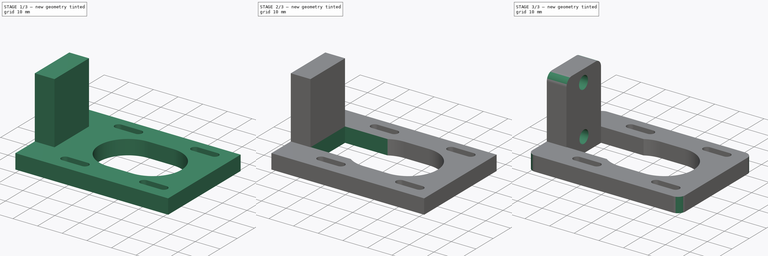
[diagram: build sequence overview — one tinted view per stage of 3, left to right]
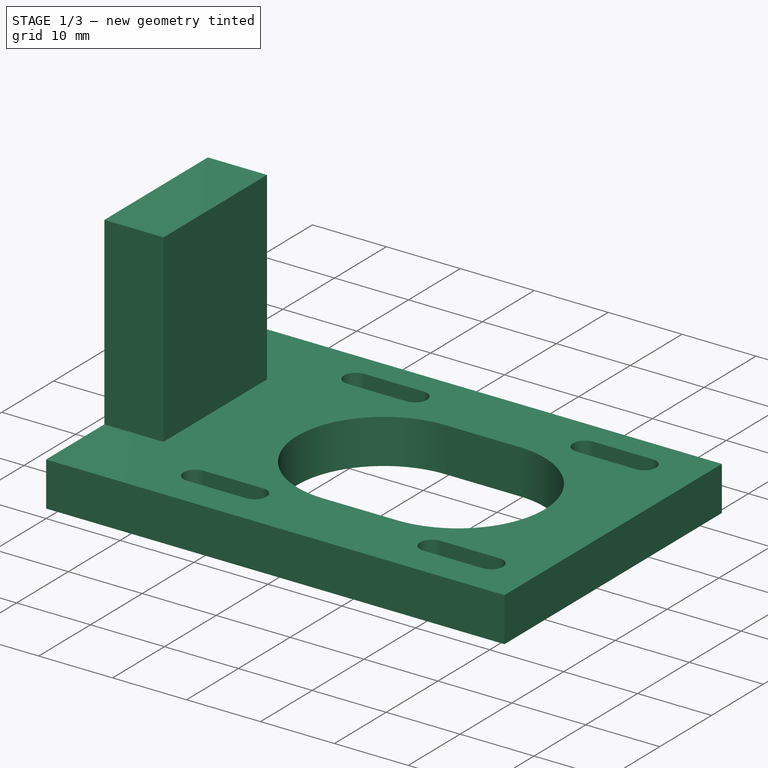
[diagram: stage 1 of 3 — iso view after this stage's code; geometry added in this stage tinted green]
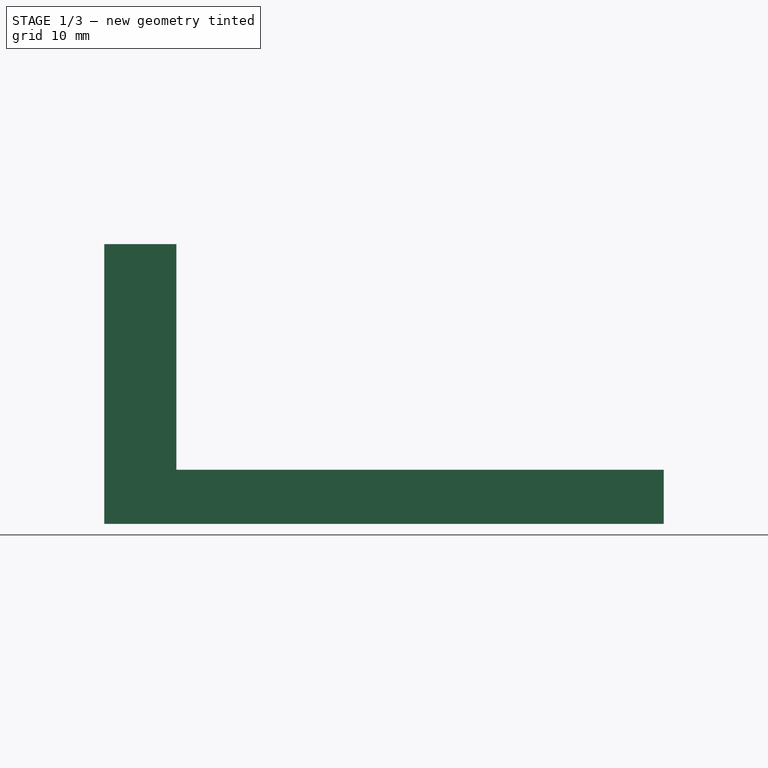
[diagram: stage 1 of 3 — front view after this stage's code; geometry added in this stage tinted green]
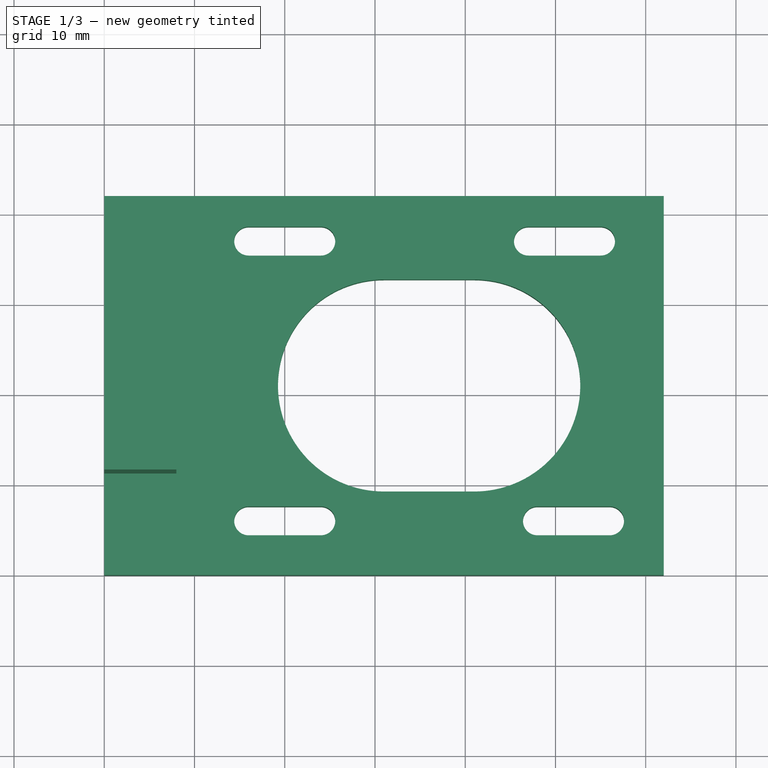
[diagram: stage 1 of 3 — top view after this stage's code; geometry added in this stage tinted green]
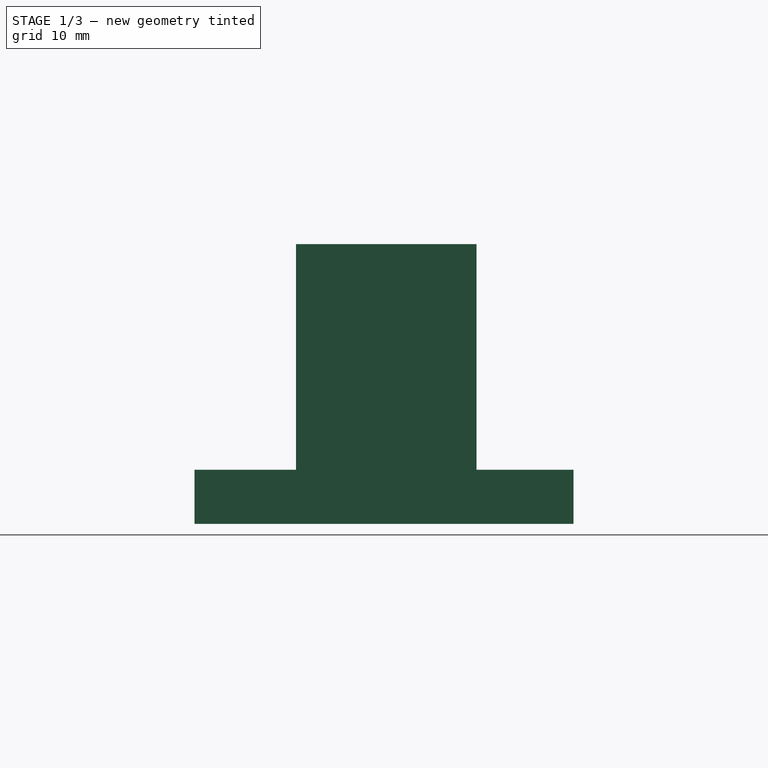
[diagram: stage 1 of 3 — right view after this stage's code; geometry added in this stage tinted green]
FCSTD DOCUMENT  (FreeCAD 1.0R38806 (Git))
Label: nema_mount_2
License: All rights reserved
LicenseURL: http://en.wikipedia.org/wiki/All_rights_reserved
objects: Sketcher::SketchObject×4, PartDesign::Pad×2, PartDesign::Pocket×2, PartDesign::Fillet×1, PartDesign::Body×1
note: 24 computed .brp shape members not serialized (recipe doc carries the construction recipe); baked Part::Feature solids carry a one-line shape summary decoded from their .brp

FEATURE [Sketcher::SketchObject] Sketch
  ArcFitTolerance = 0
  AttachmentSupport = -> [XY_Plane]
  FullyConstrained = true
  MakeInternals = false
  MapMode = 5
  sketch-geometry (25):
    g0: LineSegment StartX=62 StartY=42 StartZ=0 EndX=62 EndY=0 EndZ=0
    g1: LineSegment StartX=62 StartY=0 StartZ=0 EndX=10 EndY=0 EndZ=0
    g2: ArcOfCircle CenterX=16 CenterY=37 CenterZ=0 NormalX=0 NormalY=0 NormalZ=1 AngleXU=0 Radius=1.6 StartAngle=1.5708 EndAngle=4.71239
    g3: ArcOfCircle CenterX=24 CenterY=37 CenterZ=0 NormalX=0 NormalY=0 NormalZ=1 AngleXU=0 Radius=1.6 StartAngle=4.71239 EndAngle=7.85398
    g4: LineSegment StartX=16 StartY=38.6 StartZ=0 EndX=24 EndY=38.6 EndZ=0
    g5: LineSegment StartX=16 StartY=35.4 StartZ=0 EndX=24 EndY=35.4 EndZ=0
    g6: LineSegment StartX=47 StartY=38.6 StartZ=0 EndX=55 EndY=38.6 EndZ=0
    g7: ArcOfCircle CenterX=47 CenterY=37 CenterZ=0 NormalX=0 NormalY=0 NormalZ=1 AngleXU=0 Radius=1.6 StartAngle=1.5708 EndAngle=4.71239
    g8: ArcOfCircle CenterX=55 CenterY=37 CenterZ=0 NormalX=0 NormalY=0 NormalZ=1 AngleXU=0 Radius=1.6 StartAngle=4.71239 EndAngle=7.85398
    g9: LineSegment StartX=47 StartY=35.4 StartZ=0 EndX=55 EndY=35.4 EndZ=0
    g10: ArcOfCircle CenterX=16 CenterY=6 CenterZ=0 NormalX=0 NormalY=0 NormalZ=1 AngleXU=0 Radius=1.6 StartAngle=1.5708 EndAngle=4.71239
    g11: ArcOfCircle CenterX=24 CenterY=6 CenterZ=0 NormalX=0 NormalY=0 NormalZ=1 AngleXU=0 Radius=1.6 StartAngle=4.71239 EndAngle=7.85398
    g12: LineSegment StartX=16 StartY=7.6 StartZ=0 EndX=24 EndY=7.6 EndZ=0
    g13: LineSegment StartX=16 StartY=4.4 StartZ=0 EndX=24 EndY=4.4 EndZ=0
    g14: ArcOfCircle CenterX=48 CenterY=6 CenterZ=0 NormalX=0 NormalY=0 NormalZ=1 AngleXU=0 Radius=1.6 StartAngle=1.5708 EndAngle=4.71239
    g15: ArcOfCircle CenterX=56 CenterY=6 CenterZ=0 NormalX=0 NormalY=0 NormalZ=1 AngleXU=0 Radius=1.6 StartAngle=4.71239 EndAngle=7.85398
    g16: LineSegment StartX=48 StartY=7.6 StartZ=0 EndX=56 EndY=7.6 EndZ=0
    g17: LineSegment StartX=48 StartY=4.4 StartZ=0 EndX=56 EndY=4.4 EndZ=0
    g18: ArcOfCircle CenterX=31 CenterY=21 CenterZ=0 NormalX=0 NormalY=0 NormalZ=1 AngleXU=0 Radius=11.75 StartAngle=1.5708 EndAngle=4.71239
    g19: ArcOfCircle CenterX=41 CenterY=21 CenterZ=0 NormalX=0 NormalY=0 NormalZ=1 AngleXU=0 Radius=11.75 StartAngle=4.71239 EndAngle=7.85398
    g20: LineSegment StartX=31 StartY=32.75 StartZ=0 EndX=41 EndY=32.75 EndZ=0
    g21: LineSegment StartX=31 StartY=9.25 StartZ=0 EndX=41 EndY=9.25 EndZ=0
    g22: LineSegment StartX=62 StartY=42 StartZ=0 EndX=0 EndY=42 EndZ=0
    g23: LineSegment StartX=10 StartY=0 StartZ=0 EndX=0 EndY=0 EndZ=0
    g24: LineSegment StartX=0 StartY=42 StartZ=0 EndX=0 EndY=0 EndZ=0
  constraints (64):
    c: Vertical(g0)
    c: Coincident(g0,g1)
    c: Horizontal(g1)
    c: DistanceX(g1,g1) = 52
    c: DistanceY(g0,g0) = 42
    c: Tangent(g2,g4) = 1.5708
    c: Tangent(g2,g5) = -1.5708
    c: Tangent(g3,g4) = 1.5708
    c: Tangent(g3,g5) = -1.5708
    c: Equal(g2,g3)
    c: Horizontal(g5)
    c: DistanceY(g3,g3) = 3.2
    c: DistanceX(g2,g3) = 8
    c: Tangent(g7,g6) = 1.5708
    c: Tangent(g7,g9) = -1.5708
    c: Tangent(g8,g6) = 1.5708
    c: Tangent(g8,g9) = -1.5708
    c: Equal(g7,g8)
    c: Horizontal(g9)
    c: DistanceY(g8,g8) = 3.2
    c: DistanceX(g7,g8) = 8
    c: Tangent(g10,g12) = 1.5708
    c: Tangent(g10,g13) = -1.5708
    c: Tangent(g11,g12) = 1.5708
    c: Tangent(g11,g13) = -1.5708
    c: Equal(g10,g11)
    c: Horizontal(g13)
    c: DistanceY(g11,g11) = 3.2
    c: DistanceX(g10,g11) = 8
    c: Tangent(g14,g16) = 1.5708
    c: Tangent(g14,g17) = -1.5708
    c: Tangent(g15,g16) = 1.5708
    c: Tangent(g15,g17) = -1.5708
    c: Equal(g14,g15)
    c: Horizontal(g17)
    c: DistanceY(g15,g15) = 3.2
    c: DistanceX(g14,g15) = 8
    c: DistanceX(g2,g7) = 31
    c: Horizontal(g7,g3)
    c: Horizontal(g10,g14)
    c: DistanceX(g10,g14) = 32
    c: Vertical(g2,g10)
    c: DistanceY(g10,g2) = 31
    c: DistanceX(g1,g10) = 6
    c: DistanceY(g1,g10) = 6
    c: Tangent(g18,g20) = 1.5708
    c: Tangent(g18,g21) = -1.5708
    c: Tangent(g19,g20) = 1.5708
    c: Tangent(g19,g21) = -1.5708
    c: Equal(g18,g19)
    c: Horizontal(g21)
    c: DistanceY(g19,g19) = 23.5
    c: DistanceX(g18,g19) = 10
    c: DistanceX(g1,g18) = 21
    c: DistanceY(g1,g18) = 21
    c: Coincident(g22,g0)
    c: Horizontal(g22)
    c: Coincident(g23,g1)
    c: Horizontal(g23)
    c: Coincident(g24,g22)
    c: Coincident(g24,g23)
    c: DistanceX(g23,g23) = 10
    c: Vertical(g24)
    c: Coincident(g23,g-1)
FEATURE [PartDesign::Pad] Pad
  Direction = (0,0,1)
  Length = 6
  Length2 = 10
  Profile = -> Sketch
  ReferenceAxis = -> Sketch [N_Axis]
  Suppressed = false
  Type = 0
FEATURE [Sketcher::SketchObject] Sketch001
  ArcFitTolerance = 1e-06
  AttachmentSupport = -> [Pad]
  FullyConstrained = true
  MakeInternals = false
  MapMode = 5
  Placement = pos=(0,0,6) rot=(0,0,1;0rad)
  sketch-geometry (4):
    g0: LineSegment StartX=0 StartY=31.25 StartZ=0 EndX=0 EndY=11.25 EndZ=0
    g1: LineSegment StartX=0 StartY=11.25 StartZ=0 EndX=8 EndY=11.25 EndZ=0
    g2: LineSegment StartX=8 StartY=11.25 StartZ=0 EndX=8 EndY=31.25 EndZ=0
    g3: LineSegment StartX=8 StartY=31.25 StartZ=0 EndX=0 EndY=31.25 EndZ=0
  constraints (12):
    c: Coincident(g0,g1)
    c: Coincident(g1,g2)
    c: Coincident(g2,g3)
    c: Coincident(g3,g0)
    c: Vertical(g0)
    c: Vertical(g2)
    c: Horizontal(g1)
    c: Horizontal(g3)
    c: PointOnObject(g0,g-2)
    c: DistanceX(g3,g3) = 8
    c: DistanceY(g2,g2) = 20
    c: DistanceY(g-1,g0) = 11.25
FEATURE [PartDesign::Pad] Pad001
  BaseFeature = -> Pad
  Direction = (0,0,1)
  Length = 25
  Length2 = 4
  Profile = -> Sketch001
  ReferenceAxis = -> Sketch001 [N_Axis]
  Suppressed = false
  Type = 4
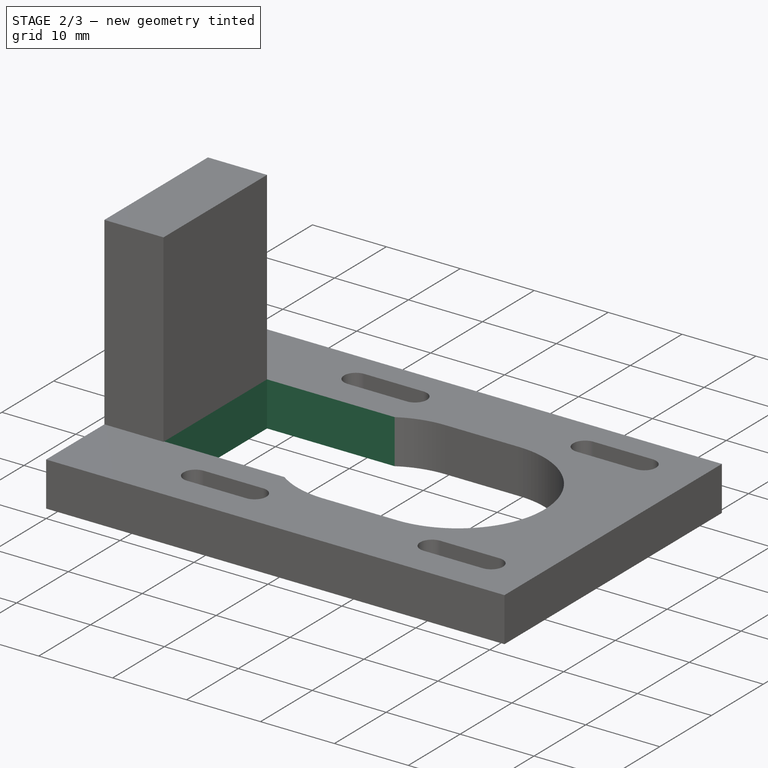
[diagram: stage 2 of 3 — iso view after this stage's code; geometry added in this stage tinted green]
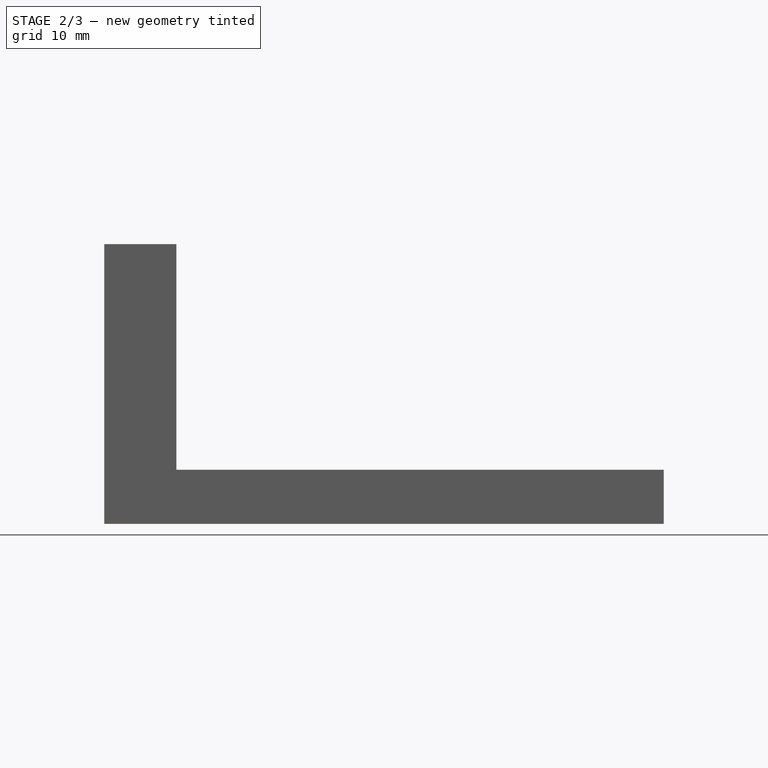
[diagram: stage 2 of 3 — front view after this stage's code; geometry added in this stage tinted green]
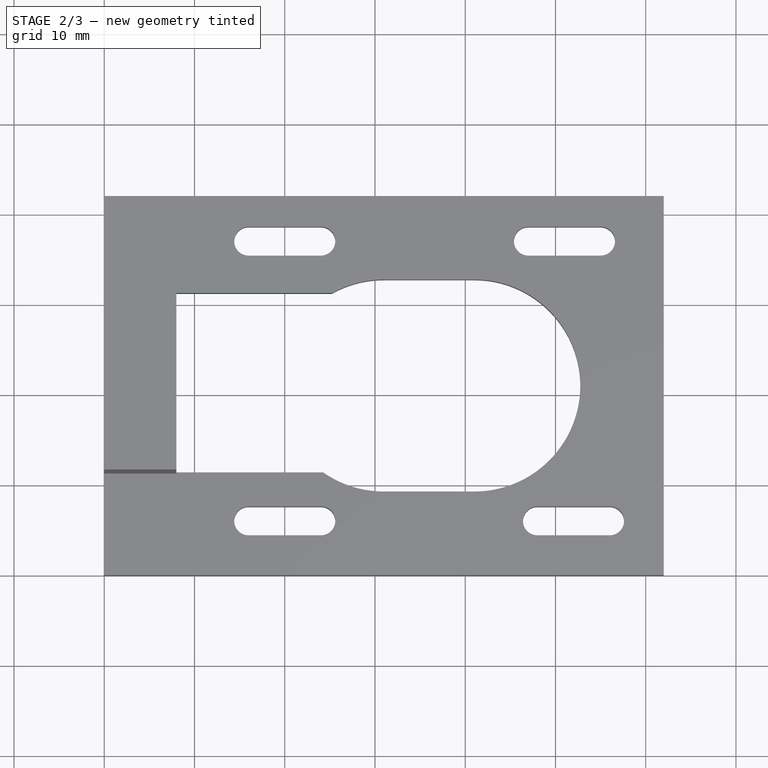
[diagram: stage 2 of 3 — top view after this stage's code; geometry added in this stage tinted green]
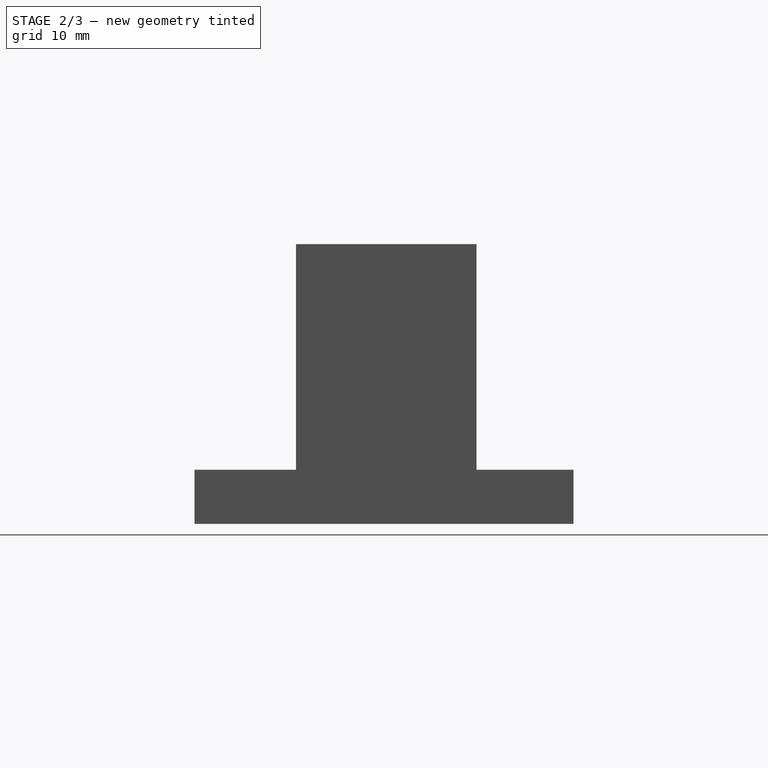
[diagram: stage 2 of 3 — right view after this stage's code; geometry added in this stage tinted green]
FEATURE [Sketcher::SketchObject] Sketch002
  ArcFitTolerance = 1e-06
  AttachmentSupport = -> [Pad001]
  ExternalGeometry = -> [Pad001]
  FullyConstrained = false
  MakeInternals = false
  MapMode = 5
  Placement = pos=(0,0,6) rot=(0,0,1;0rad)
  sketch-geometry (4):
    g0: LineSegment StartX=8 StartY=31.25 StartZ=0 EndX=8 EndY=11.3717 EndZ=0
    g1: LineSegment StartX=8 StartY=11.3717 StartZ=0 EndX=25.9815 EndY=11.3717 EndZ=0
    g2: LineSegment StartX=25.9815 StartY=11.3717 StartZ=0 EndX=25.9815 EndY=31.25 EndZ=0
    g3: LineSegment StartX=25.9815 StartY=31.25 StartZ=0 EndX=8 EndY=31.25 EndZ=0
  constraints (9):
    c: Coincident(g0,g1)
    c: Coincident(g1,g2)
    c: Coincident(g2,g3)
    c: Coincident(g3,g0)
    c: Vertical(g0)
    c: Vertical(g2)
    c: Horizontal(g1)
    c: Horizontal(g3)
    c: Coincident(g0,g-3)
FEATURE [PartDesign::Pocket] Pocket
  BaseFeature = -> Pad001
  Direction = (0,0,-1)
  Length = 6
  Length2 = 5
  Profile = -> Sketch002
  ReferenceAxis = -> Sketch002 [N_Axis]
  Suppressed = false
  Type = 0
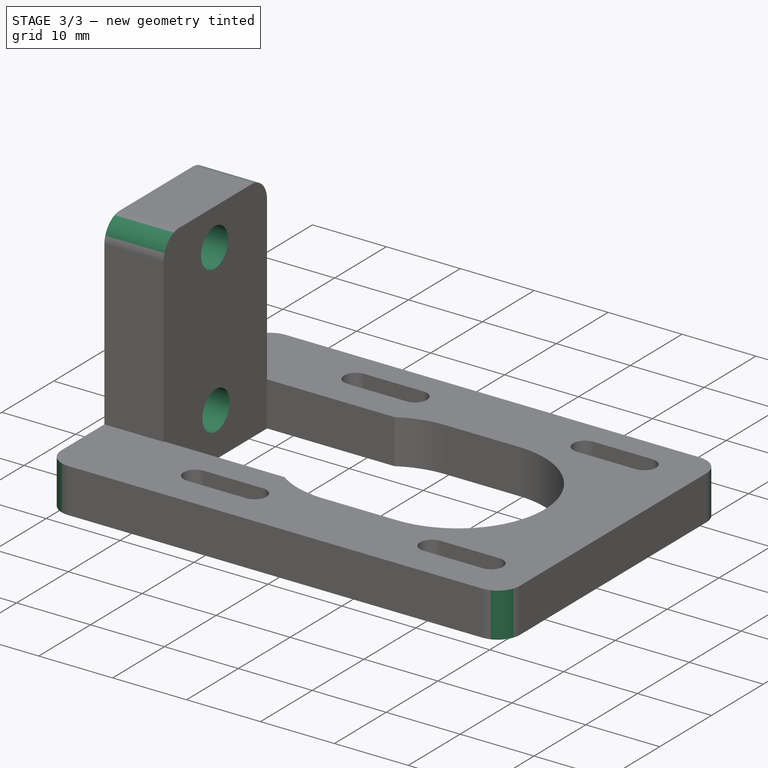
[diagram: stage 3 of 3 — iso view after this stage's code; geometry added in this stage tinted green]
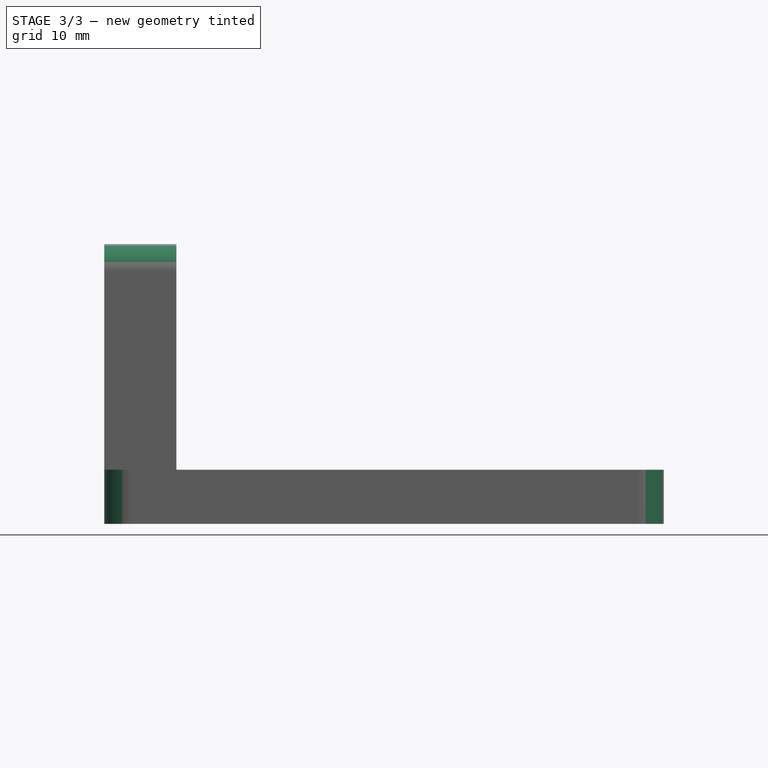
[diagram: stage 3 of 3 — front view after this stage's code; geometry added in this stage tinted green]
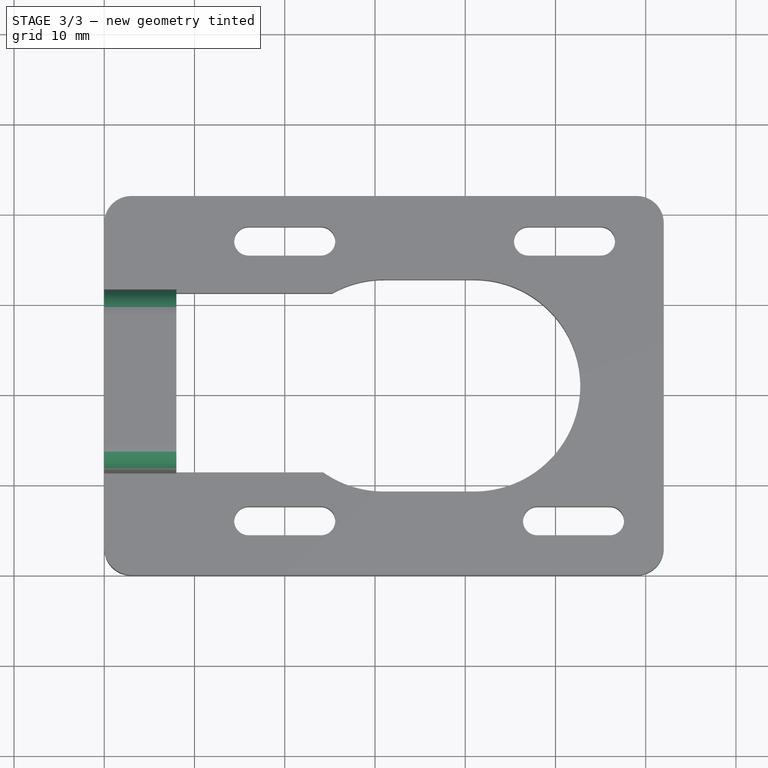
[diagram: stage 3 of 3 — top view after this stage's code; geometry added in this stage tinted green]
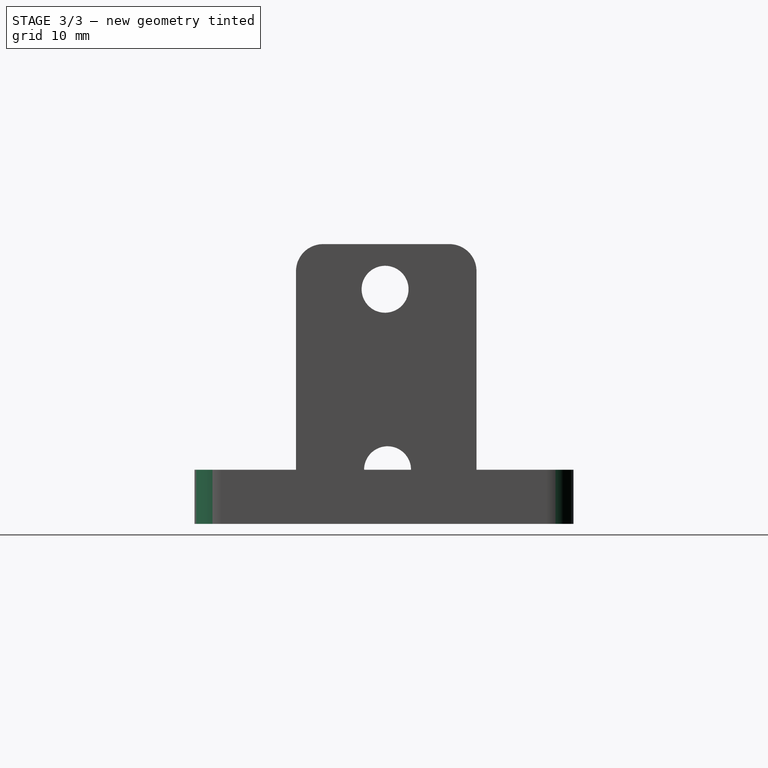
[diagram: stage 3 of 3 — right view after this stage's code; geometry added in this stage tinted green]
FEATURE [Sketcher::SketchObject] Sketch003
  ArcFitTolerance = 1e-06
  AttachmentSupport = -> [Pocket]
  ExternalGeometry = -> [Pocket]
  FullyConstrained = false
  MakeInternals = false
  MapMode = 5
  Placement = pos=(8,0,0) rot=(0.57735,0.57735,0.57735;2.0944rad)
  sketch-geometry (2):
    g0: Circle CenterX=21.1191 CenterY=26 CenterZ=0 NormalX=0 NormalY=0 NormalZ=1 AngleXU=0 Radius=2.6
    g1: Circle CenterX=21.3934 CenterY=6 CenterZ=0 NormalX=0 NormalY=0 NormalZ=1 AngleXU=0 Radius=2.6
  constraints (4):
    c: Diameter(g0) = 5.2
    c: Diameter(g1) = 5.2
    c: DistanceY(g1,g0) = 20
    c: DistanceY(g0,g-3) = 5
FEATURE [PartDesign::Pocket] Pocket001
  BaseFeature = -> Pocket
  Direction = (-1,0,0)
  Length = 9
  Length2 = 5
  Profile = -> Sketch003
  ReferenceAxis = -> Sketch003 [N_Axis]
  Suppressed = false
  Type = 0
FEATURE [PartDesign::Fillet] Fillet
  Base = -> Pocket001 [Edge9,Edge5,Edge1,Edge2,Edge108,Edge101]
  BaseFeature = -> Pocket001
  Radius = 3
  SupportTransform = false
  Suppressed = false
  UseAllEdges = false
FEATURE [PartDesign::Body] Body
  AllowCompound = false
  Group = -> [Sketch,Pad,Sketch001,Pad001,Sketch002,Pocket,Sketch003,Pocket001,Fillet]
  Origin = -> Origin
  Tip = -> Fillet
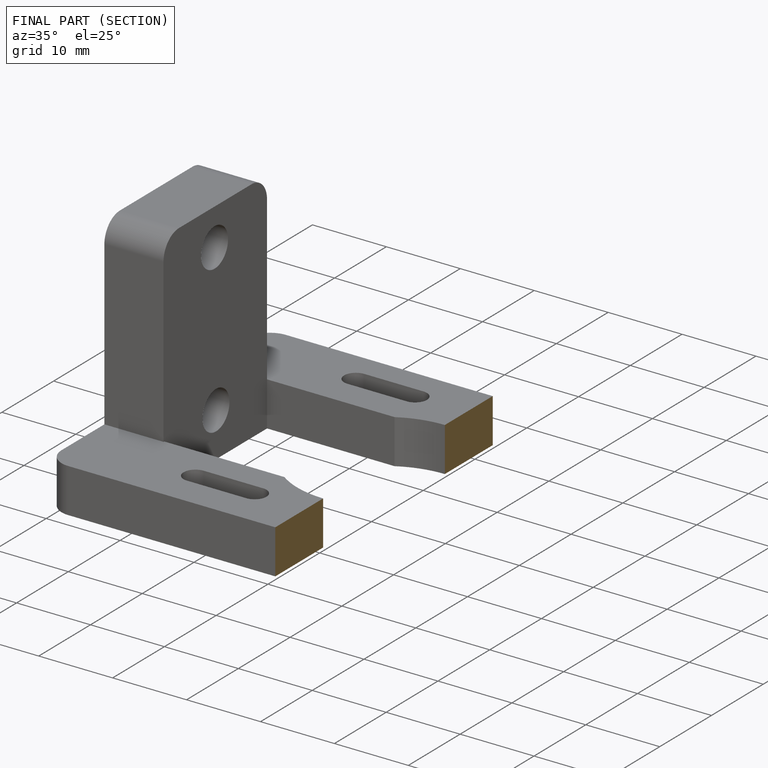
[diagram: finished part — half-section view (interior)]
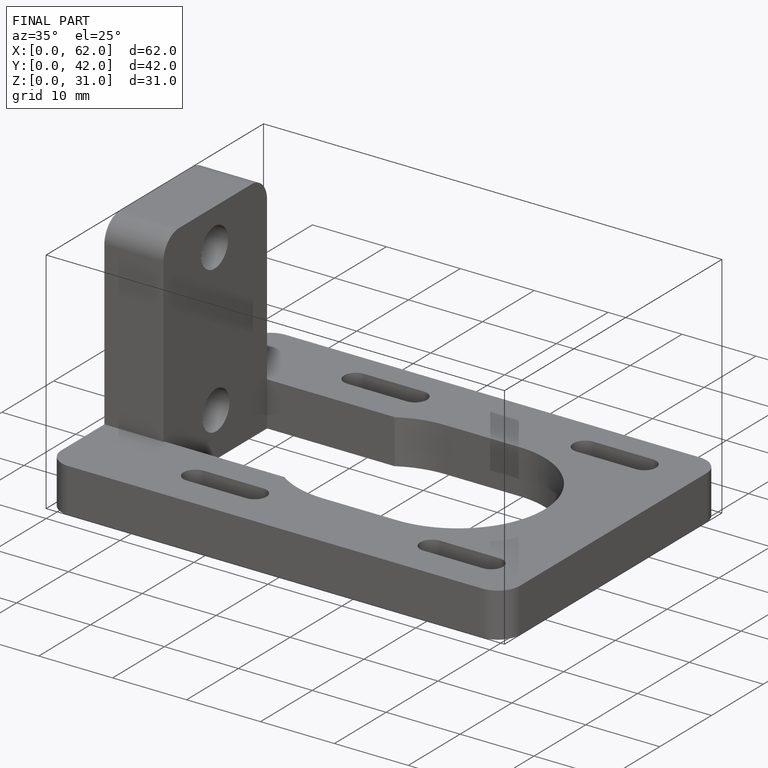
[diagram: finished part — iso view with bounding-box wireframe]
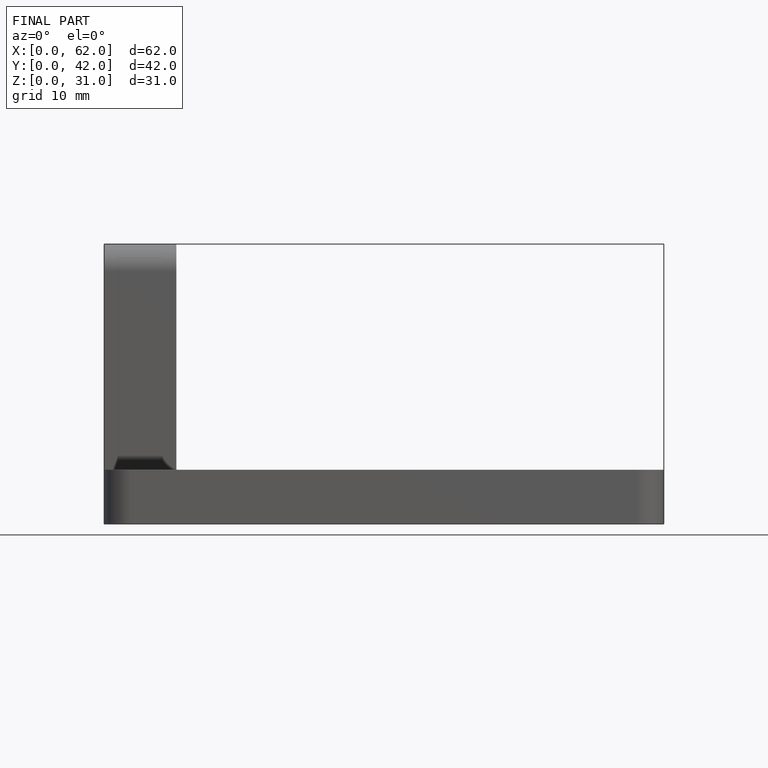
[diagram: finished part — front view with bounding-box wireframe]
